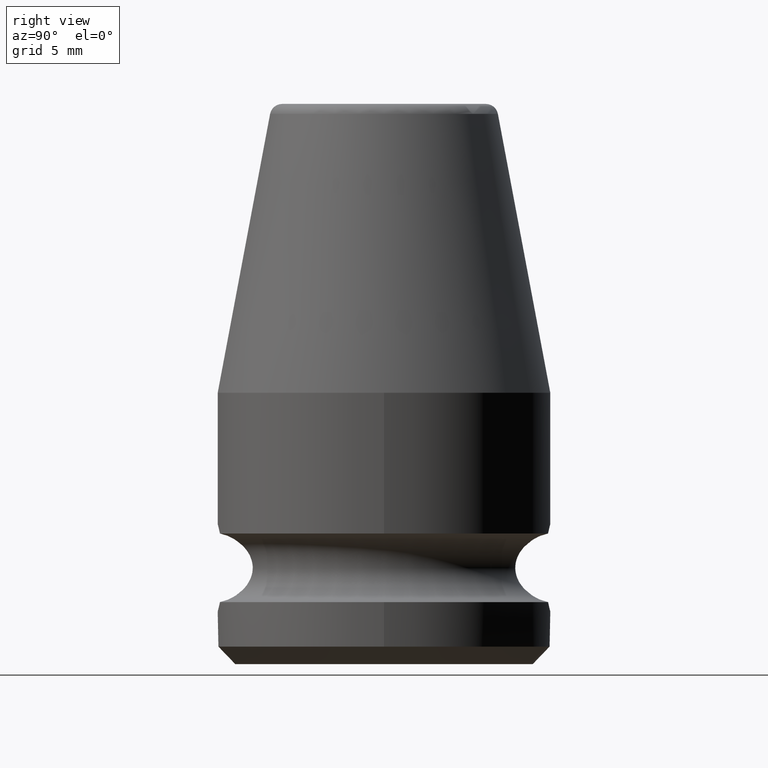
[diagram: clean part render]
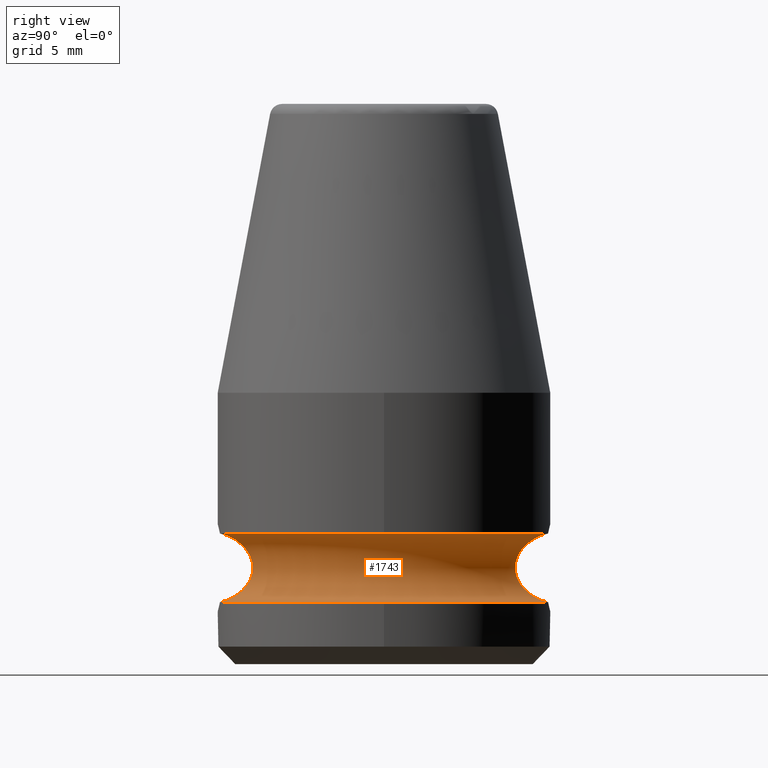
[diagram: same view with one face highlighted and labeled with its STEP entity id]
A machine part, right view. The second image highlights one B-rep face of the part: STEP entity #1743.
In plain terms, the highlighted toroidal blend (fillet) surface has major radius 9.9 mm and minor (blend) radius 2 mm.
Its self-contained STEP definition (entity closure, byte-faithful):
#355=CARTESIAN_POINT('',(1.552417469626E0,-9.372299611088E0,3.540408205773E0));
#363=CARTESIAN_POINT('',(0.E0,0.E0,3.540408205773E0));
#364=DIRECTION('',(0.E0,0.E0,1.E0));
#365=DIRECTION('',(1.634123652238E-1,-9.865578537987E-1,0.E0));
#366=AXIS2_PLACEMENT_3D('',#363,#364,#365);
#387=CARTESIAN_POINT('',(0.E0,0.E0,7.459591794227E0));
#388=DIRECTION('',(0.E0,0.E0,1.E0));
#389=DIRECTION('',(1.634123652238E-1,-9.865578537987E-1,0.E0));
#390=AXIS2_PLACEMENT_3D('',#387,#388,#389);
#398=CARTESIAN_POINT('',(1.552417469626E0,-9.372299611088E0,7.459591794227E0));
#452=CARTESIAN_POINT('',(0.E0,0.E0,3.540408205773E0));
#453=DIRECTION('',(0.E0,0.E0,1.E0));
#454=DIRECTION('',(1.E0,0.E0,0.E0));
#455=AXIS2_PLACEMENT_3D('',#452,#453,#454);
#463=CARTESIAN_POINT('',(1.552417469626E0,9.372299611088E0,3.540408205773E0));
#483=CARTESIAN_POINT('',(1.552417469626E0,9.372299611088E0,7.459591794227E0));
#491=CARTESIAN_POINT('',(0.E0,0.E0,7.459591794227E0));
#492=DIRECTION('',(0.E0,0.E0,1.E0));
#493=DIRECTION('',(1.E0,0.E0,0.E0));
#494=AXIS2_PLACEMENT_3D('',#491,#492,#493);
#677=CARTESIAN_POINT('',(1.552417469626E0,-9.372299611088E0,7.459591794227E0));
#678=CARTESIAN_POINT('',(1.566228030608E0,-9.315682346774E0,7.448650864490E0));
#679=CARTESIAN_POINT('',(1.598215236398E0,-9.204606461968E0,7.422841874006E0));
#680=CARTESIAN_POINT('',(1.656660210873E0,-9.042348268043E0,7.372904347704E0));
#681=CARTESIAN_POINT('',(1.721599660475E0,-8.887289532420E0,7.313542258376E0));
#682=CARTESIAN_POINT('',(1.790138071949E0,-8.739757909616E0,7.246060542133E0));
#683=CARTESIAN_POINT('',(1.861727141584E0,-8.596664694944E0,7.169739736074E0));
#684=CARTESIAN_POINT('',(1.938939450182E0,-8.450729953897E0,7.079846077406E0));
#685=CARTESIAN_POINT('',(2.023634839425E0,-8.297589354695E0,6.970491709035E0));
#686=CARTESIAN_POINT('',(2.114545475853E0,-8.138756425100E0,6.837363525287E0));
#687=CARTESIAN_POINT('',(2.208095537918E0,-7.979296248619E0,6.677936803776E0));
#688=CARTESIAN_POINT('',(2.302134329316E0,-7.821631804141E0,6.483837237786E0));
#689=CARTESIAN_POINT('',(2.389875032043E0,-7.675959998487E0,6.250189320496E0));
#690=CARTESIAN_POINT('',(2.463457146155E0,-7.554337153768E0,5.964197512596E0));
#691=CARTESIAN_POINT('',(2.503313846159E0,-7.488526325062E0,5.636280724552E0));
#692=CARTESIAN_POINT('',(2.500518491824E0,-7.493142407713E0,5.316845973886E0));
#693=CARTESIAN_POINT('',(2.453331230266E0,-7.571059082555E0,4.984254190880E0));
#694=CARTESIAN_POINT('',(2.373359775702E0,-7.703298028552E0,4.698833126638E0));
#695=CARTESIAN_POINT('',(2.278715483805E0,-7.860677901923E0,4.462729698781E0));
#696=CARTESIAN_POINT('',(2.178939395986E0,-8.028600656263E0,4.268928859997E0));
#697=CARTESIAN_POINT('',(2.081671650157E0,-8.195601994397E0,4.112103227515E0));
#698=CARTESIAN_POINT('',(1.989944338122E0,-8.357751434291E0,3.984422151735E0));
#699=CARTESIAN_POINT('',(1.907504344493E0,-8.509287348423E0,3.882545075865E0));
#700=CARTESIAN_POINT('',(1.834245962794E0,-8.650649211269E0,3.800299380673E0));
#701=CARTESIAN_POINT('',(1.767892130544E0,-8.786551912141E0,3.731588553077E0));
#702=CARTESIAN_POINT('',(1.705511854324E0,-8.924453169354E0,3.671471416194E0));
#703=CARTESIAN_POINT('',(1.646943609455E0,-9.068105782566E0,3.618665913291E0));
#704=CARTESIAN_POINT('',(1.594306722679E0,-9.217641112881E0,3.573993283622E0));
#705=CARTESIAN_POINT('',(1.565147223550E0,-9.320113183360E0,3.550492904247E0));
#706=CARTESIAN_POINT('',(1.552417469626E0,-9.372299611088E0,3.540408205773E0));
#708=CARTESIAN_POINT('',(1.552417469626E0,9.372299611088E0,3.540408205773E0));
#709=CARTESIAN_POINT('',(1.565131531365E0,9.320177514459E0,3.550480472667E0));
#710=CARTESIAN_POINT('',(1.594268766307E0,9.217733801798E0,3.573960278585E0));
#711=CARTESIAN_POINT('',(1.647126974995E0,9.067599966391E0,3.618822450786E0));
#712=CARTESIAN_POINT('',(1.705774341623E0,8.923858882001E0,3.671718090851E0));
#713=CARTESIAN_POINT('',(1.767749239992E0,8.786897003799E0,3.731463540282E0));
#714=CARTESIAN_POINT('',(1.832903971045E0,8.653375188315E0,3.798900475965E0));
#715=CARTESIAN_POINT('',(1.903970138472E0,8.516014836636E0,3.878494252543E0));
#716=CARTESIAN_POINT('',(1.983098579812E0,8.370162681433E0,3.975683450603E0));
#717=CARTESIAN_POINT('',(2.071306378308E0,8.213700410143E0,4.096964269980E0));
#718=CARTESIAN_POINT('',(2.166482323528E0,8.049781170857E0,4.247443473403E0));
#719=CARTESIAN_POINT('',(2.266233718856E0,7.881544218306E0,4.435977316606E0));
#720=CARTESIAN_POINT('',(2.362527806736E0,7.721247143476E0,4.667932853874E0));
#721=CARTESIAN_POINT('',(2.445001745565E0,7.584816783314E0,4.946964192072E0));
#722=CARTESIAN_POINT('',(2.497298460151E0,7.498459397942E0,5.276905305283E0));
#723=CARTESIAN_POINT('',(2.505128674697E0,7.485529444256E0,5.597605019857E0));
#724=CARTESIAN_POINT('',(2.470432762161E0,7.542818271277E0,5.926378420751E0));
#725=CARTESIAN_POINT('',(2.399482598079E0,7.660061552377E0,6.219594272059E0));
#726=CARTESIAN_POINT('',(2.313438687135E0,7.802805668535E0,6.457142634868E0));
#727=CARTESIAN_POINT('',(2.220068209128E0,7.959102392811E0,6.655464993851E0));
#728=CARTESIAN_POINT('',(2.125572873232E0,8.119761013704E0,6.820030883999E0));
#729=CARTESIAN_POINT('',(2.031782962481E0,8.283093611984E0,6.959463394785E0));
#730=CARTESIAN_POINT('',(1.943525109513E0,8.442198844741E0,7.074353386847E0));
#731=CARTESIAN_POINT('',(1.863639003074E0,8.592884239005E0,7.167678584305E0));
#732=CARTESIAN_POINT('',(1.790412539120E0,8.739133697313E0,7.245808593823E0));
#733=CARTESIAN_POINT('',(1.721289204567E0,8.887970193945E0,7.313839950234E0));
#734=CARTESIAN_POINT('',(1.656456592561E0,9.042904772175E0,7.373078235216E0));
#735=CARTESIAN_POINT('',(1.598310350740E0,9.204348288231E0,7.422760821250E0));
#736=CARTESIAN_POINT('',(1.566262727880E0,9.315540103121E0,7.448623376800E0));
#737=CARTESIAN_POINT('',(1.552417469626E0,9.372299611088E0,7.459591794227E0));
#993=VERTEX_POINT('',#463);
#994=VERTEX_POINT('',#483);
#999=VERTEX_POINT('',#398);
#1000=VERTEX_POINT('',#355);
#1016=CARTESIAN_POINT('',(9.5E0,0.E0,7.459591794227E0));
#1017=VERTEX_POINT('',#1016);
#1018=CARTESIAN_POINT('',(9.5E0,0.E0,3.540408205773E0));
#1019=VERTEX_POINT('',#1018);
#1730=CARTESIAN_POINT('',(0.E0,0.E0,5.5E0));
#1731=DIRECTION('',(0.E0,0.E0,1.E0));
#1732=DIRECTION('',(0.E0,1.E0,0.E0));
#1733=AXIS2_PLACEMENT_3D('',#1730,#1731,#1732);
#1734=TOROIDAL_SURFACE('',#1733,9.9E0,2.E0);
#1735=ORIENTED_EDGE('',*,*,#1720,.F.);
#1736=ORIENTED_EDGE('',*,*,#1523,.T.);
#1737=ORIENTED_EDGE('',*,*,#1608,.T.);
#1738=ORIENTED_EDGE('',*,*,#1703,.F.);
#1739=ORIENTED_EDGE('',*,*,#1589,.F.);
#1740=ORIENTED_EDGE('',*,*,#1502,.F.);
#1741=EDGE_LOOP('',(#1735,#1736,#1737,#1738,#1739,#1740));
#1742=FACE_OUTER_BOUND('',#1741,.F.);
#1743=ADVANCED_FACE('',(#1742),#1734,.F.);
#367=CIRCLE('',#366,9.5E0);
#391=CIRCLE('',#390,9.5E0);
#456=CIRCLE('',#455,9.5E0);
#495=CIRCLE('',#494,9.5E0);
#707=B_SPLINE_CURVE_WITH_KNOTS('',3,(#677,#678,#679,#680,#681,#682,#683,#684,
#685,#686,#687,#688,#689,#690,#691,#692,#693,#694,#695,#696,#697,#698,#699,#700,
#701,#702,#703,#704,#705,#706),.UNSPECIFIED.,.F.,.F.,(4,1,1,1,1,1,1,1,1,1,1,1,1,
1,1,1,1,1,1,1,1,1,1,1,1,1,1,4),(0.E0,3.703703703704E-2,7.407407407407E-2,
1.111111111111E-1,1.481481481481E-1,1.851851851852E-1,2.222222222222E-1,
2.592592592593E-1,2.962962962963E-1,3.333333333333E-1,3.703703703704E-1,
4.074074074074E-1,4.444444444444E-1,4.814814814815E-1,5.185185185185E-1,
5.555555555556E-1,5.925925925926E-1,6.296296296296E-1,6.666666666667E-1,
7.037037037037E-1,7.407407407407E-1,7.777777777778E-1,8.148148148148E-1,
8.518518518519E-1,8.888888888889E-1,9.259259259259E-1,9.629629629630E-1,1.E0),
.UNSPECIFIED.);
#738=B_SPLINE_CURVE_WITH_KNOTS('',3,(#708,#709,#710,#711,#712,#713,#714,#715,
#716,#717,#718,#719,#720,#721,#722,#723,#724,#725,#726,#727,#728,#729,#730,#731,
#732,#733,#734,#735,#736,#737),.UNSPECIFIED.,.F.,.F.,(4,1,1,1,1,1,1,1,1,1,1,1,1,
1,1,1,1,1,1,1,1,1,1,1,1,1,1,4),(0.E0,3.703703703704E-2,7.407407407407E-2,
1.111111111111E-1,1.481481481481E-1,1.851851851852E-1,2.222222222222E-1,
2.592592592593E-1,2.962962962963E-1,3.333333333333E-1,3.703703703704E-1,
4.074074074074E-1,4.444444444444E-1,4.814814814815E-1,5.185185185185E-1,
5.555555555556E-1,5.925925925926E-1,6.296296296296E-1,6.666666666667E-1,
7.037037037037E-1,7.407407407407E-1,7.777777777778E-1,8.148148148148E-1,
8.518518518519E-1,8.888888888889E-1,9.259259259259E-1,9.629629629630E-1,1.E0),
.UNSPECIFIED.);
#1502=EDGE_CURVE('',#1000,#1019,#367,.T.);
#1523=EDGE_CURVE('',#999,#1017,#391,.T.);
#1589=EDGE_CURVE('',#1019,#993,#456,.T.);
#1608=EDGE_CURVE('',#1017,#994,#495,.T.);
#1703=EDGE_CURVE('',#993,#994,#738,.T.);
#1720=EDGE_CURVE('',#999,#1000,#707,.T.);